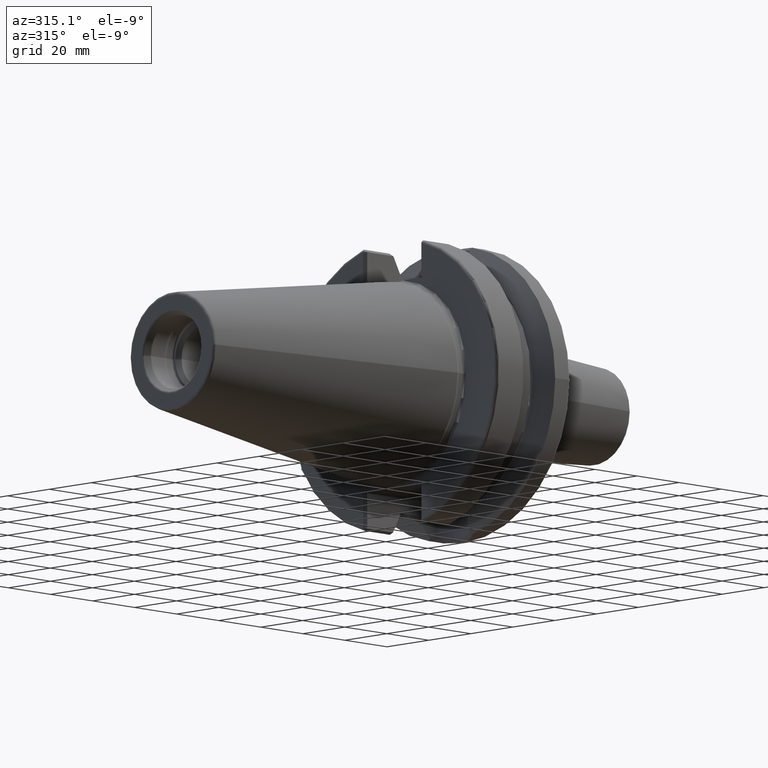
[diagram: clean part render]
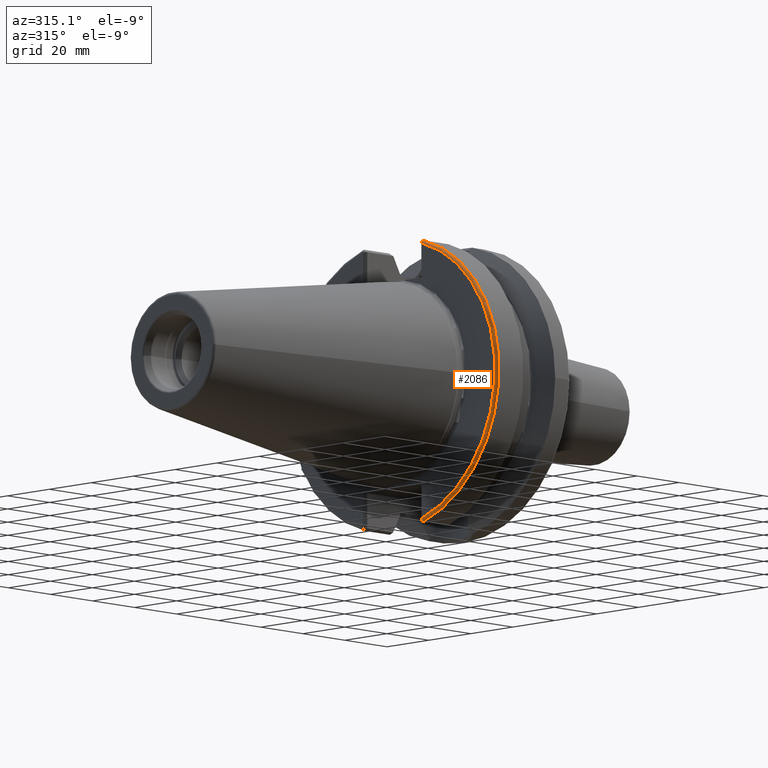
[diagram: same view with one face highlighted and labeled with its STEP entity id]
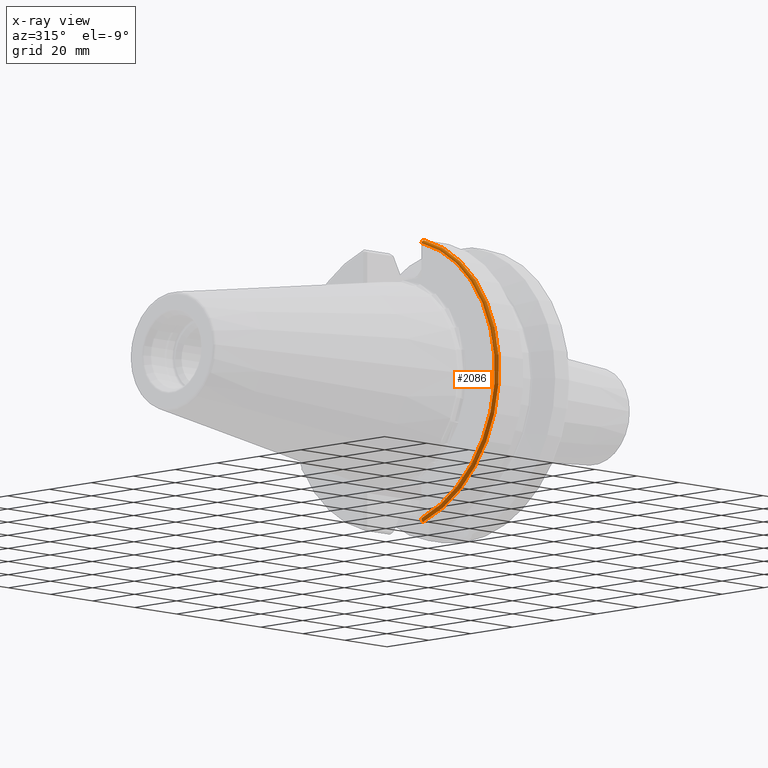
[diagram: x-ray of the same camera — body ghosted, the highlighted face saturated]
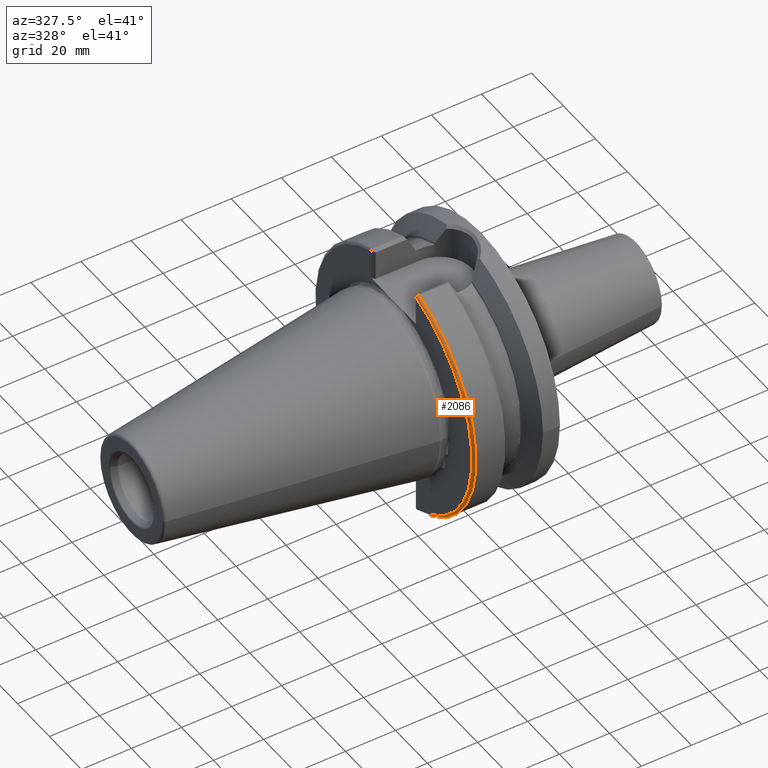
[diagram: same view with one face highlighted and labeled with its STEP entity id]
A machine part, auxiliary view. The second image highlights one B-rep face of the part: STEP entity #2086.
The next image is the same camera in x-ray: the body ghosted, the highlighted face saturated — about 0% of this face is hidden behind the body in this view.
A second angle (auxiliary view) of the same face is appended — the face is thin or edge-on in the first view.
In plain terms, the highlighted toroidal blend (fillet) surface has major radius 48.9875 mm and minor (blend) radius 1 mm.
Its self-contained STEP definition (entity closure, byte-faithful):
#218=CARTESIAN_POINT('',(4.E0,0.E0,0.E0));
#219=DIRECTION('',(-1.E0,0.E0,0.E0));
#220=DIRECTION('',(0.E0,-2.773348004750E-1,-9.607733387462E-1));
#221=AXIS2_PLACEMENT_3D('',#218,#219,#220);
#593=CARTESIAN_POINT('',(2.999993172884E0,-1.390249317248E1,-4.697335004622E1));
#594=CARTESIAN_POINT('',(2.999993172884E0,-1.390258355640E1,-4.703686424350E1));
#595=CARTESIAN_POINT('',(3.011034865800E0,-1.390161469890E1,-4.716733990672E1));
#596=CARTESIAN_POINT('',(3.066796699794E0,-1.389728433203E1,-4.736907635249E1));
#597=CARTESIAN_POINT('',(3.162899754239E0,-1.389052093324E1,-4.756045881447E1));
#598=CARTESIAN_POINT('',(3.294931333912E0,-1.388240594639E1,-4.772857875800E1));
#599=CARTESIAN_POINT('',(3.454761225175E0,-1.387449273833E1,-4.786347597167E1));
#600=CARTESIAN_POINT('',(3.632802361895E0,-1.386813157488E1,-4.795971866684E1));
#601=CARTESIAN_POINT('',(3.818524379244E0,-1.386408249541E1,-4.801536526032E1));
#602=CARTESIAN_POINT('',(3.940459880706E0,-1.386328759388E1,-4.802665404266E1));
#603=CARTESIAN_POINT('',(3.999999999701E0,-1.386327248661E1,-4.802665840350E1));
#605=CARTESIAN_POINT('',(3.E0,0.E0,0.E0));
#606=DIRECTION('',(-1.E0,0.E0,0.E0));
#607=DIRECTION('',(0.E0,-2.837968955579E-1,-9.588844153868E-1));
#608=AXIS2_PLACEMENT_3D('',#605,#606,#607);
#610=CARTESIAN_POINT('',(4.E0,-1.390251954399E1,4.697334463905E1));
#611=DIRECTION('',(0.E0,-9.588842998530E-1,-2.837972859196E-1));
#612=DIRECTION('',(0.E0,-2.837972859196E-1,9.588842998530E-1));
#613=AXIS2_PLACEMENT_3D('',#610,#611,#612);
#1350=CARTESIAN_POINT('',(2.999985565709E0,-1.390248556397E1,4.697335390064E1));
#1352=VERTEX_POINT('',#1350);
#1354=CARTESIAN_POINT('',(4.E0,-1.418631682991E1,4.793222893890E1));
#1355=VERTEX_POINT('',#1354);
#1375=VERTEX_POINT('',#593);
#1376=VERTEX_POINT('',#603);
#2074=CARTESIAN_POINT('',(4.E0,0.E0,0.E0));
#2075=DIRECTION('',(1.E0,0.E0,0.E0));
#2076=DIRECTION('',(0.E0,-1.E0,0.E0));
#2077=AXIS2_PLACEMENT_3D('',#2074,#2075,#2076);
#2078=TOROIDAL_SURFACE('',#2077,4.89875E1,1.E0);
#2080=ORIENTED_EDGE('',*,*,#2079,.F.);
#2081=ORIENTED_EDGE('',*,*,#1605,.T.);
#2082=ORIENTED_EDGE('',*,*,#2052,.F.);
#2083=ORIENTED_EDGE('',*,*,#1726,.F.);
#2084=EDGE_LOOP('',(#2080,#2081,#2082,#2083));
#2085=FACE_OUTER_BOUND('',#2084,.F.);
#2086=ADVANCED_FACE('',(#2085),#2078,.T.);
#222=CIRCLE('',#221,4.99875E1);
#604=B_SPLINE_CURVE_WITH_KNOTS('',3,(#593,#594,#595,#596,#597,#598,#599,#600,
#601,#602,#603),.UNSPECIFIED.,.F.,.F.,(4,1,1,1,1,1,1,1,4),(0.E0,1.25E-1,2.5E-1,
3.75E-1,5.E-1,6.25E-1,7.5E-1,8.75E-1,1.E0),.UNSPECIFIED.);
#609=CIRCLE('',#608,4.89875E1);
#614=CIRCLE('',#613,1.E0);
#1605=EDGE_CURVE('',#1375,#1352,#609,.T.);
#1726=EDGE_CURVE('',#1376,#1355,#222,.T.);
#2052=EDGE_CURVE('',#1355,#1352,#614,.T.);
#2079=EDGE_CURVE('',#1375,#1376,#604,.T.);